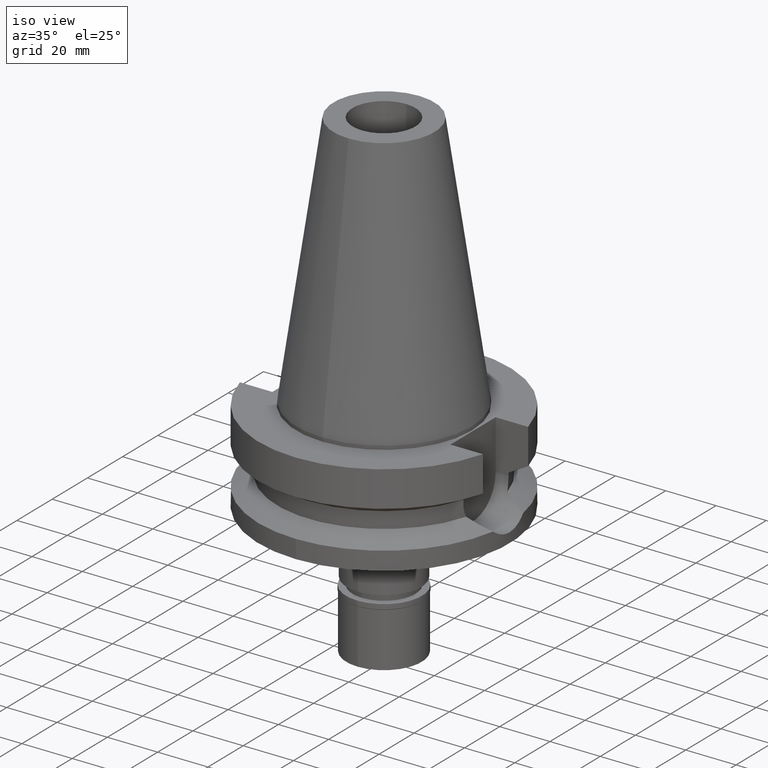
[diagram: clean part render]
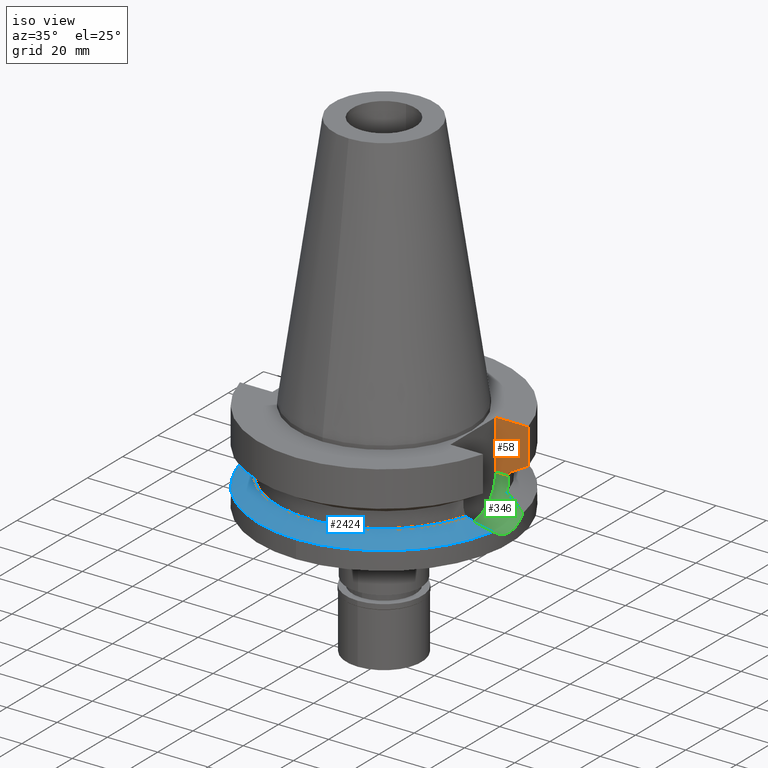
[diagram: same view with three faces highlighted in distinct colors, each labeled with its STEP entity id]
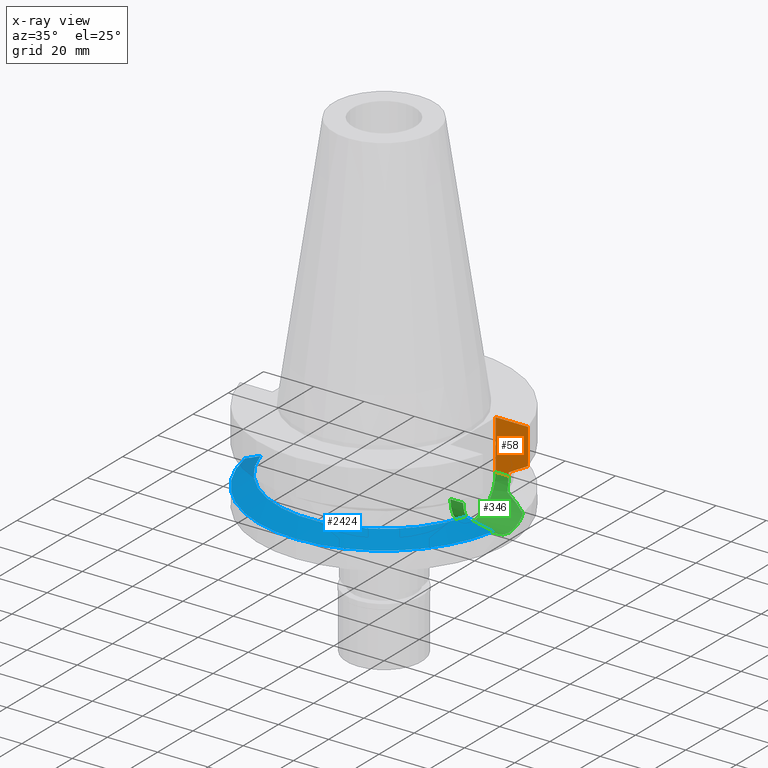
[diagram: x-ray of the same camera — body ghosted, the three highlighted faces saturated]
A machine part, iso view with three faces highlighted in distinct colors.
The next image is the same camera in x-ray (body ghosted, the three faces saturated) — at least one of them is partly hidden behind the body in this view.
Their STEP definitions:

[orange] entity #58 — the highlighted planar face has unit normal (0, 1, 0).
#17 = DIRECTION ( 'NONE',  ( 1.000000000000000000, 0.0000000000000000000, 0.0000000000000000000 ) ) ;
#23 = CARTESIAN_POINT ( 'NONE',  ( 40.51083300251000452, 12.84999647638000120, -19.99284629595999974 ) ) ;
#33 = VECTOR ( 'NONE', #539, 1000.000000000000000 ) ;
#35 = PLANE ( 'NONE',  #1196 ) ;
#58 = ADVANCED_FACE ( 'NONE', ( #1974 ), #35, .F. ) ;
#87 = EDGE_CURVE ( 'NONE', #2300, #2654, #1988, .T. ) ;
#125 = CARTESIAN_POINT ( 'NONE',  ( 35.39999999999999858, 12.84999999999999964, -1.500000000000000000 ) ) ;
#157 = CARTESIAN_POINT ( 'NONE',  ( 48.32056913467000214, 12.85000383272999969, -15.66265790252000301 ) ) ;
#195 = EDGE_CURVE ( 'NONE', #1798, #661, #783, .T. ) ;
#228 = EDGE_LOOP ( 'NONE', ( #863, #2216, #1369, #2311, #3137, #257 ) ) ;
#247 = DIRECTION ( 'NONE',  ( 0.0000000000000000000, 0.0000000000000000000, -1.000000000000000000 ) ) ;
#257 = ORIENTED_EDGE ( 'NONE', *, *, #87, .T. ) ;
#261 = CARTESIAN_POINT ( 'NONE',  ( 35.39999999999999858, 12.84999999999999964, -21.14999999999999858 ) ) ;
#374 = CARTESIAN_POINT ( 'NONE',  ( 40.51083300251000452, 12.84999647638000120, -19.99284629595999974 ) ) ;
#470 = VERTEX_POINT ( 'NONE', #1041 ) ;
#504 = CARTESIAN_POINT ( 'NONE',  ( 40.51083188481999997, 12.84999999999999964, -21.14999999999999858 ) ) ;
#539 = DIRECTION ( 'NONE',  ( 1.000000000000000000, -3.336643826789999529E-14, 0.0000000000000000000 ) ) ;
#661 = VERTEX_POINT ( 'NONE', #1169 ) ;
#702 = VECTOR ( 'NONE', #1903, 1000.000000000000000 ) ;
#783 = LINE ( 'NONE', #1474, #1143 ) ;
#863 = ORIENTED_EDGE ( 'NONE', *, *, #1799, .F. ) ;
#923 = CARTESIAN_POINT ( 'NONE',  ( 35.39999999999999858, 12.84999999999999964, -1.500000000000000000 ) ) ;
#943 = EDGE_CURVE ( 'NONE', #470, #2264, #2625, .T. ) ;
#1041 = CARTESIAN_POINT ( 'NONE',  ( 48.32056913467000214, 12.85000383272999969, -15.66265790252000301 ) ) ;
#1045 = DIRECTION ( 'NONE',  ( 9.658929590383971837E-07, -3.045070870682990904E-06, 0.9999999999948973040 ) ) ;
#1107 = CARTESIAN_POINT ( 'NONE',  ( 45.51179780372359573, 12.85000766083355650, -17.22986774231831220 ) ) ;
#1143 = VECTOR ( 'NONE', #247, 1000.000000000000000 ) ;
#1169 = CARTESIAN_POINT ( 'NONE',  ( 35.39999999999999858, 12.84999999999999964, -21.14999999999999858 ) ) ;
#1196 = AXIS2_PLACEMENT_3D ( 'NONE', #261, #2215, #17 ) ;
#1280 = CARTESIAN_POINT ( 'NONE',  ( 48.32057015392000210, 12.84999999999999964, -1.500000000000000000 ) ) ;
#1369 = ORIENTED_EDGE ( 'NONE', *, *, #1984, .F. ) ;
#1474 = CARTESIAN_POINT ( 'NONE',  ( 35.39999999999999858, 12.84999999999999964, -1.500000000000000000 ) ) ;
#1720 = VECTOR ( 'NONE', #2099, 1000.000000000000000 ) ;
#1798 = VERTEX_POINT ( 'NONE', #125 ) ;
#1799 = EDGE_CURVE ( 'NONE', #470, #2654, #2451, .T. ) ;
#1903 = DIRECTION ( 'NONE',  ( 1.000000000000000000, 0.0000000000000000000, 0.0000000000000000000 ) ) ;
#1974 = FACE_OUTER_BOUND ( 'NONE', #228, .T. ) ;
#1984 = EDGE_CURVE ( 'NONE', #1798, #2264, #2883, .T. ) ;
#1988 = LINE ( 'NONE', #504, #2970 ) ;
#2099 = DIRECTION ( 'NONE',  ( 7.196714009508719416E-08, -2.706218663693894436E-07, 0.9999999999999608091 ) ) ;
#2206 = CARTESIAN_POINT ( 'NONE',  ( 35.39999999999999858, 12.84999999999999964, -21.14999999999999858 ) ) ;
#2215 = DIRECTION ( 'NONE',  ( -0.0000000000000000000, 1.000000000000000000, 0.0000000000000000000 ) ) ;
#2216 = ORIENTED_EDGE ( 'NONE', *, *, #943, .T. ) ;
#2264 = VERTEX_POINT ( 'NONE', #1280 ) ;
#2300 = VERTEX_POINT ( 'NONE', #2452 ) ;
#2311 = ORIENTED_EDGE ( 'NONE', *, *, #195, .T. ) ;
#2343 = EDGE_CURVE ( 'NONE', #661, #2300, #2747, .T. ) ;
#2360 = CARTESIAN_POINT ( 'NONE',  ( 48.32056913467000214, 12.85000383272999969, -15.66265790252000301 ) ) ;
#2451 = B_SPLINE_CURVE_WITH_KNOTS ( 'NONE', 3,
 ( #2360, #1107, #2823, #374 ),
 .UNSPECIFIED., .F., .F.,
 ( 4, 4 ),
 ( 0.0000000000000000000, 1.000000000000000000 ),
 .UNSPECIFIED. ) ;
#2452 = CARTESIAN_POINT ( 'NONE',  ( 40.51083188481999997, 12.84999999999999964, -21.14999999999999858 ) ) ;
#2625 = LINE ( 'NONE', #157, #1720 ) ;
#2654 = VERTEX_POINT ( 'NONE', #23 ) ;
#2747 = LINE ( 'NONE', #2206, #33 ) ;
#2823 = CARTESIAN_POINT ( 'NONE',  ( 42.90862363287928360, 12.84999294559502836, -18.67324852983504968 ) ) ;
#2883 = LINE ( 'NONE', #923, #702 ) ;
#2970 = VECTOR ( 'NONE', #1045, 1000.000000000000000 ) ;
#3137 = ORIENTED_EDGE ( 'NONE', *, *, #2343, .T. ) ;

[blue] entity #2424 — the highlighted conical surface has half-angle 60 deg.
#84 = CARTESIAN_POINT ( 'NONE',  ( 0.0000000000000000000, 0.0000000000000000000, -26.40718074535000426 ) ) ;
#128 = CARTESIAN_POINT ( 'NONE',  ( -48.06470078914732369, -9.209032971910556142, -30.12395289545179011 ) ) ;
#189 = VERTEX_POINT ( 'NONE', #2956 ) ;
#198 = DIRECTION ( 'NONE',  ( 0.0000000000000000000, 0.0000000000000000000, -1.000000000000000000 ) ) ;
#262 = ORIENTED_EDGE ( 'NONE', *, *, #2661, .F. ) ;
#284 = CARTESIAN_POINT ( 'NONE',  ( -40.85052569294000335, -11.72538061688000077, -26.40718074535000426 ) ) ;
#303 = CARTESIAN_POINT ( 'NONE',  ( -46.17227160335852432, -10.05454520068514412, -29.15267120961923553 ) ) ;
#394 = CIRCLE ( 'NONE', #1819, 42.50000000000000000 ) ;
#431 = DIRECTION ( 'NONE',  ( 0.0000000000000000000, 0.0000000000000000000, -1.000000000000000000 ) ) ;
#523 = CARTESIAN_POINT ( 'NONE',  ( -43.95200883355096266, -10.89594475692153708, -28.01054105456284304 ) ) ;
#551 = CARTESIAN_POINT ( 'NONE',  ( 43.79693304722244562, -10.91843803171270721, -27.92991481741735527 ) ) ;
#613 = CARTESIAN_POINT ( 'NONE',  ( -47.05859043544599274, -9.676808570781791019, -29.60788274902913386 ) ) ;
#705 = B_SPLINE_CURVE_WITH_KNOTS ( 'NONE', 3,
 ( #2966, #797, #1766, #551, #2495, #2064, #1826, #2305, #2795, #1840 ),
 .UNSPECIFIED., .F., .F.,
 ( 4, 2, 2, 2, 4 ),
 ( 0.0000000000000000000, 0.2499999999999978906, 0.3749999999999973910, 0.4999999999999968914, 1.000000000000000000 ),
 .UNSPECIFIED. ) ;
#719 = B_SPLINE_CURVE_WITH_KNOTS ( 'NONE', 3,
 ( #1742, #2008, #128, #613, #1341, #303, #755, #1964, #2468, #1281, #2238, #2712, #1729, #2699, #523, #2250, #284 ),
 .UNSPECIFIED., .F., .F.,
 ( 4, 2, 2, 1, 1, 1, 1, 1, 2, 2, 4 ),
 ( 0.0000000000000000000, 0.2500000000000078826, 0.3750000000000118239, 0.4375000000000146549, 0.4687500000000157097, 0.4843750000000165423, 0.4921875000000178746, 0.4960937500000185962, 0.4980468750000195399, 0.5000000000000205391, 1.000000000000000000 ),
 .UNSPECIFIED. ) ;
#755 = CARTESIAN_POINT ( 'NONE',  ( -45.89829391930676650, -10.16558497959637819, -29.01185241229442369 ) ) ;
#784 = CARTESIAN_POINT ( 'NONE',  ( 40.85052569294000335, -11.72538061688000077, -26.40718074535000426 ) ) ;
#797 = CARTESIAN_POINT ( 'NONE',  ( 41.75396824093865433, -11.51557556459704301, -26.87512054284432494 ) ) ;
#1110 = AXIS2_PLACEMENT_3D ( 'NONE', #1710, #431, #2650 ) ;
#1180 = DIRECTION ( 'NONE',  ( 0.0000000000000000000, -1.000000000000000000, 0.0000000000000000000 ) ) ;
#1240 = DIRECTION ( 'NONE',  ( 0.0000000000000000000, 0.0000000000000000000, -1.000000000000000000 ) ) ;
#1281 = CARTESIAN_POINT ( 'NONE',  ( -45.32173445990380145, -10.38696557368014872, -28.71530564697427934 ) ) ;
#1293 = EDGE_LOOP ( 'NONE', ( #2187, #1632, #1960, #1998, #262 ) ) ;
#1325 = AXIS2_PLACEMENT_3D ( 'NONE', #2387, #198, #1180 ) ;
#1341 = CARTESIAN_POINT ( 'NONE',  ( -46.71124693321148413, -9.829930420050569495, -29.42958155129365139 ) ) ;
#1360 = EDGE_CURVE ( 'NONE', #1493, #1562, #394, .T. ) ;
#1490 = EDGE_CURVE ( 'NONE', #1562, #2351, #705, .T. ) ;
#1493 = VERTEX_POINT ( 'NONE', #2320 ) ;
#1562 = VERTEX_POINT ( 'NONE', #784 ) ;
#1623 = CONICAL_SURFACE ( 'NONE', #3038, 46.25000000000000000, 1.047197551196400456 ) ;
#1632 = ORIENTED_EDGE ( 'NONE', *, *, #2490, .F. ) ;
#1710 = CARTESIAN_POINT ( 'NONE',  ( 0.0000000000000000000, 0.0000000000000000000, -30.73730776426999967 ) ) ;
#1729 = CARTESIAN_POINT ( 'NONE',  ( -45.25003329997131374, -10.41371616422548740, -28.67841484540468144 ) ) ;
#1742 = CARTESIAN_POINT ( 'NONE',  ( -49.26250064874000145, -8.556052234130000045, -30.73730776426999967 ) ) ;
#1766 = CARTESIAN_POINT ( 'NONE',  ( 42.60350039800909627, -11.28501275749034072, -27.31434286833754044 ) ) ;
#1819 = AXIS2_PLACEMENT_3D ( 'NONE', #84, #2017, #2477 ) ;
#1826 = CARTESIAN_POINT ( 'NONE',  ( 45.28216753375731685, -10.40443642647353961, -28.69444357642723631 ) ) ;
#1840 = CARTESIAN_POINT ( 'NONE',  ( 49.26250064874000145, -8.556052234130000045, -30.73730776426999967 ) ) ;
#1881 = CIRCLE ( 'NONE', #1325, 50.00000000000000000 ) ;
#1960 = ORIENTED_EDGE ( 'NONE', *, *, #1490, .F. ) ;
#1964 = CARTESIAN_POINT ( 'NONE',  ( -45.57079575444381447, -10.29271808923187770, -28.84342947909450672 ) ) ;
#1998 = ORIENTED_EDGE ( 'NONE', *, *, #1360, .F. ) ;
#2008 = CARTESIAN_POINT ( 'NONE',  ( -48.68754748761186590, -8.885998275624471532, -30.44285225758557445 ) ) ;
#2017 = DIRECTION ( 'NONE',  ( 0.0000000000000000000, 0.0000000000000000000, 1.000000000000000000 ) ) ;
#2031 = CIRCLE ( 'NONE', #1110, 50.00000000000000000 ) ;
#2064 = CARTESIAN_POINT ( 'NONE',  ( 44.92297770777549459, -10.53612987693290926, -28.50971311233822192 ) ) ;
#2187 = ORIENTED_EDGE ( 'NONE', *, *, #2548, .F. ) ;
#2238 = CARTESIAN_POINT ( 'NONE',  ( -45.27993777157273314, -10.40257967896112135, -28.69380122990297721 ) ) ;
#2250 = CARTESIAN_POINT ( 'NONE',  ( -42.48949765321938798, -11.34476471764678607, -27.25608941018916909 ) ) ;
#2305 = CARTESIAN_POINT ( 'NONE',  ( 46.99261131393738111, -9.743370682494790103, -29.57401611051870560 ) ) ;
#2320 = CARTESIAN_POINT ( 'NONE',  ( -40.85052569294000335, -11.72538061688000077, -26.40718074535000426 ) ) ;
#2351 = VERTEX_POINT ( 'NONE', #2974 ) ;
#2366 = DIRECTION ( 'NONE',  ( 0.0000000000000000000, -1.000000000000000000, 0.0000000000000000000 ) ) ;
#2387 = CARTESIAN_POINT ( 'NONE',  ( 0.0000000000000000000, 0.0000000000000000000, -30.73730776426999967 ) ) ;
#2424 = ADVANCED_FACE ( 'NONE', ( #3062 ), #1623, .T. ) ;
#2468 = CARTESIAN_POINT ( 'NONE',  ( -45.40508228864501916, -10.35565650936537807, -28.75818555560833545 ) ) ;
#2477 = DIRECTION ( 'NONE',  ( 0.0000000000000000000, -1.000000000000000000, 0.0000000000000000000 ) ) ;
#2490 = EDGE_CURVE ( 'NONE', #2351, #189, #2031, .T. ) ;
#2495 = CARTESIAN_POINT ( 'NONE',  ( 44.18126633256147784, -10.79278064368078383, -28.12791486455022749 ) ) ;
#2548 = EDGE_CURVE ( 'NONE', #189, #2768, #1881, .T. ) ;
#2573 = CARTESIAN_POINT ( 'NONE',  ( -49.26250064874000145, -8.556052234130000045, -30.73730776426999967 ) ) ;
#2650 = DIRECTION ( 'NONE',  ( 0.9852500129747439050, -0.1711210446826074982, 0.0000000000000000000 ) ) ;
#2661 = EDGE_CURVE ( 'NONE', #2768, #1493, #719, .T. ) ;
#2699 = CARTESIAN_POINT ( 'NONE',  ( -45.24308286831119119, -10.41630036337064880, -28.67483866301918738 ) ) ;
#2712 = CARTESIAN_POINT ( 'NONE',  ( -45.26199859643931944, -10.40926273355748677, -28.68457124044441997 ) ) ;
#2768 = VERTEX_POINT ( 'NONE', #2573 ) ;
#2795 = CARTESIAN_POINT ( 'NONE',  ( 48.20535943358625985, -9.162709580887716143, -30.19590531066164729 ) ) ;
#2832 = CARTESIAN_POINT ( 'NONE',  ( 0.0000000000000000000, 0.0000000000000000000, -28.57224425480999841 ) ) ;
#2956 = CARTESIAN_POINT ( 'NONE',  ( 0.0000000000000000000, -50.00000000000000000, -30.73730776426999967 ) ) ;
#2966 = CARTESIAN_POINT ( 'NONE',  ( 40.85052569294000335, -11.72538061688000077, -26.40718074535000426 ) ) ;
#2974 = CARTESIAN_POINT ( 'NONE',  ( 49.26250064874000145, -8.556052234130000045, -30.73730776426999967 ) ) ;
#3038 = AXIS2_PLACEMENT_3D ( 'NONE', #2832, #1240, #2366 ) ;
#3062 = FACE_OUTER_BOUND ( 'NONE', #1293, .T. ) ;

[green] entity #346 — the highlighted cylindrical surface (partial cylindrical patch) has radius 12.85 mm, axis along (1, 0, 0).
#4 = ORIENTED_EDGE ( 'NONE', *, *, #1601, .T. ) ;
#22 = CARTESIAN_POINT ( 'NONE',  ( 49.73975255189971278, 5.127509536859588657, -32.94811602937416239 ) ) ;
#33 = VECTOR ( 'NONE', #539, 1000.000000000000000 ) ;
#47 = CARTESIAN_POINT ( 'NONE',  ( 49.98261383967735583, -1.500558363489409963, -33.93574400298680871 ) ) ;
#65 = CARTESIAN_POINT ( 'NONE',  ( 45.31123041090138059, 10.39129058171987730, -28.70934102372478947 ) ) ;
#81 = CARTESIAN_POINT ( 'NONE',  ( 49.71773619479519368, -5.301485227040060977, -32.85669905118468392 ) ) ;
#82 = AXIS2_PLACEMENT_3D ( 'NONE', #2906, #2184, #2708 ) ;
#101 = CARTESIAN_POINT ( 'NONE',  ( 45.91788233851954715, 10.15819505262003553, -29.02137211855098542 ) ) ;
#108 = CARTESIAN_POINT ( 'NONE',  ( 49.78852623003829336, -4.593834391891897795, -33.15080591698723111 ) ) ;
#113 = CARTESIAN_POINT ( 'NONE',  ( 40.51083188481998576, 12.84999999999999609, -22.03308001787898363 ) ) ;
#138 = CARTESIAN_POINT ( 'NONE',  ( 40.51083188481999997, -12.84999999999999964, -21.14999999999999858 ) ) ;
#147 = CARTESIAN_POINT ( 'NONE',  ( 40.51083188481999997, -12.85000000000000320, -21.59154171177989667 ) ) ;
#156 = CARTESIAN_POINT ( 'NONE',  ( 40.85052569294000335, -11.72538061688000077, -26.40718074535000426 ) ) ;
#263 = CARTESIAN_POINT ( 'NONE',  ( 49.79173955587080513, 4.558792742357672623, -33.16415544152760475 ) ) ;
#266 = CARTESIAN_POINT ( 'NONE',  ( 40.63719938804484144, 12.44499676302420532, -24.35261212843622047 ) ) ;
#292 = CARTESIAN_POINT ( 'NONE',  ( 49.78974543591902346, -4.580568652478198111, -33.15586994644122854 ) ) ;
#296 = CARTESIAN_POINT ( 'NONE',  ( 42.50583130523752118, 11.34097157914026965, -27.26454945652885087 ) ) ;
#311 = CARTESIAN_POINT ( 'NONE',  ( 49.76779264235984357, -4.813552442414976262, -33.06481752115855244 ) ) ;
#314 = CARTESIAN_POINT ( 'NONE',  ( 43.97693828744524325, 10.88825773756050808, -28.02287518022296453 ) ) ;
#345 = CARTESIAN_POINT ( 'NONE',  ( 49.79081990968762028, -4.568854175488819891, -33.16033354867019511 ) ) ;
#346 = ADVANCED_FACE ( 'NONE', ( #3002 ), #1308, .F. ) ;
#368 = CARTESIAN_POINT ( 'NONE',  ( 49.66989089100455601, 5.761879091785703899, -32.66244013549982839 ) ) ;
#410 = CARTESIAN_POINT ( 'NONE',  ( 40.51818719763606680, -12.82722225432846486, -22.03686830839668431 ) ) ;
#472 = EDGE_CURVE ( 'NONE', #2909, #501, #2340, .T. ) ;
#488 = B_SPLINE_CURVE_WITH_KNOTS ( 'NONE', 3,
 ( #1830, #2486, #2723, #1979, #789, #266, #1249, #2220, #1774, #1036, #1092, #2324, #113, #2550 ),
 .UNSPECIFIED., .F., .F.,
 ( 4, 2, 2, 1, 1, 2, 2, 4 ),
 ( 0.0000000000000000000, 0.2500000000000073830, 0.3750000000000118794, 0.4375000000000131561, 0.4687500000000128231, 0.4843750000000127121, 0.5000000000000125455, 1.000000000000000000 ),
 .UNSPECIFIED. ) ;
#501 = VERTEX_POINT ( 'NONE', #2817 ) ;
#506 = CARTESIAN_POINT ( 'NONE',  ( 49.82081573775739969, 4.229771872516516318, -33.28463879269514081 ) ) ;
#513 = ORIENTED_EDGE ( 'NONE', *, *, #2810, .T. ) ;
#535 = CARTESIAN_POINT ( 'NONE',  ( 45.34670889343192357, 10.37800447507444090, -28.72759324151313720 ) ) ;
#537 = CARTESIAN_POINT ( 'NONE',  ( 49.49361225530456210, 7.116990880673130349, -31.87771967131133266 ) ) ;
#539 = DIRECTION ( 'NONE',  ( 1.000000000000000000, -3.336643826789999529E-14, 0.0000000000000000000 ) ) ;
#549 = CARTESIAN_POINT ( 'NONE',  ( 49.91306816534679314, -3.031090855953892493, -33.66157117771800955 ) ) ;
#551 = CARTESIAN_POINT ( 'NONE',  ( 43.79693304722244562, -10.91843803171270721, -27.92991481741735527 ) ) ;
#553 = CARTESIAN_POINT ( 'NONE',  ( 48.06851946822539645, 9.207153404535143082, -30.12574645233389958 ) ) ;
#564 = CARTESIAN_POINT ( 'NONE',  ( 49.26250064874000145, -8.556052234130000045, -30.73730776426999967 ) ) ;
#586 = AXIS2_PLACEMENT_3D ( 'NONE', #2766, #1581, #857 ) ;
#661 = VERTEX_POINT ( 'NONE', #1169 ) ;
#662 = CARTESIAN_POINT ( 'NONE',  ( 40.59544671389546977, -12.58032818125550101, -23.76890350619959591 ) ) ;
#691 = CARTESIAN_POINT ( 'NONE',  ( 40.59736864107564003, -12.57412283048047641, -23.79851909555267397 ) ) ;
#705 = B_SPLINE_CURVE_WITH_KNOTS ( 'NONE', 3,
 ( #2966, #797, #1766, #551, #2495, #2064, #1826, #2305, #2795, #1840 ),
 .UNSPECIFIED., .F., .F.,
 ( 4, 2, 2, 2, 4 ),
 ( 0.0000000000000000000, 0.2499999999999978906, 0.3749999999999973910, 0.4999999999999968914, 1.000000000000000000 ),
 .UNSPECIFIED. ) ;
#720 = CARTESIAN_POINT ( 'NONE',  ( 49.98261161639165806, 1.500598209080370893, -33.93574248253926129 ) ) ;
#736 = CARTESIAN_POINT ( 'NONE',  ( 49.84839303697045665, 3.895404147803682715, -33.39823680735965183 ) ) ;
#784 = CARTESIAN_POINT ( 'NONE',  ( 40.85052569294000335, -11.72538061688000077, -26.40718074535000426 ) ) ;
#789 = CARTESIAN_POINT ( 'NONE',  ( 40.66327695313441382, 12.35977177935619764, -24.67238797831660690 ) ) ;
#797 = CARTESIAN_POINT ( 'NONE',  ( 41.75396824093865433, -11.51557556459704301, -26.87512054284432494 ) ) ;
#813 = ORIENTED_EDGE ( 'NONE', *, *, #2623, .T. ) ;
#817 = B_SPLINE_CURVE_WITH_KNOTS ( 'NONE', 3,
 ( #1933, #1193, #720, #3146, #972, #1950, #736, #506, #1476, #1703, #2679, #2450, #1458, #263, #22, #368, #537, #1093, #2005 ),
 .UNSPECIFIED., .F., .F.,
 ( 4, 2, 2, 1, 1, 1, 1, 1, 2, 2, 2, 4 ),
 ( 0.0000000000000000000, 0.2500000000000630607, 0.3750000000000945355, 0.4375000000001105782, 0.4687500000001189049, 0.4843750000001234013, 0.4921875000001252887, 0.4960937500001257883, 0.4980468750001260658, 0.5000000000001263434, 0.7500000000000631717, 1.000000000000000000 ),
 .UNSPECIFIED. ) ;
#819 = CARTESIAN_POINT ( 'NONE',  ( 45.27390061106402896, 10.40523376717388082, -28.69013600846888679 ) ) ;
#829 = CARTESIAN_POINT ( 'NONE',  ( 49.86090890959889066, -3.802093052270004048, -33.45158313280379758 ) ) ;
#857 = DIRECTION ( 'NONE',  ( 0.0000000000000000000, 0.0000000000000000000, -1.000000000000000000 ) ) ;
#858 = CARTESIAN_POINT ( 'NONE',  ( 49.26250064874000145, 8.556052234130000045, -30.73730776426999967 ) ) ;
#868 = EDGE_CURVE ( 'NONE', #1296, #1440, #817, .T. ) ;
#884 = CARTESIAN_POINT ( 'NONE',  ( 40.56599673094049763, -12.67509433840594291, -23.26596311450725096 ) ) ;
#905 = ORIENTED_EDGE ( 'NONE', *, *, #2343, .F. ) ;
#972 = CARTESIAN_POINT ( 'NONE',  ( 49.90870988845126988, 3.032621470742910219, -33.64335829089890950 ) ) ;
#1036 = CARTESIAN_POINT ( 'NONE',  ( 40.60257095199524713, 12.55731571366592725, -23.87709474180364921 ) ) ;
#1058 = EDGE_LOOP ( 'NONE', ( #4, #813, #905, #2927, #2920, #513, #2101, #2072, #2054 ) ) ;
#1060 = CARTESIAN_POINT ( 'NONE',  ( 49.79055600884188237, -4.571733192414884073, -33.15923719343983578 ) ) ;
#1066 = CARTESIAN_POINT ( 'NONE',  ( 45.59339658389674810, 10.28443529616816043, -28.85449113462793136 ) ) ;
#1092 = CARTESIAN_POINT ( 'NONE',  ( 40.60092750940731321, 12.56262654778621801, -23.85254111936651711 ) ) ;
#1093 = CARTESIAN_POINT ( 'NONE',  ( 49.38719528049971075, 7.838107881977241398, -31.37802667402631585 ) ) ;
#1099 = EDGE_CURVE ( 'NONE', #661, #501, #1616, .T. ) ;
#1123 = CARTESIAN_POINT ( 'NONE',  ( 40.57496101843508995, -12.64633755876963583, -23.43369807925312287 ) ) ;
#1155 = CARTESIAN_POINT ( 'NONE',  ( 40.73816957791172655, -12.11682261042261111, -25.53412604435476752 ) ) ;
#1169 = CARTESIAN_POINT ( 'NONE',  ( 35.39999999999999858, 12.84999999999999964, -21.14999999999999858 ) ) ;
#1173 = B_SPLINE_CURVE_WITH_KNOTS ( 'NONE', 3,
 ( #564, #2304, #2734, #2524, #2509, #81, #2475, #1534, #311, #1305, #1781, #108, #292, #1060, #345, #829, #549, #47, #2763, #2542 ),
 .UNSPECIFIED., .F., .F.,
 ( 4, 2, 2, 2, 1, 1, 1, 1, 2, 2, 2, 4 ),
 ( 0.0000000000000000000, 0.2500000000000011102, 0.3750000000000011102, 0.4375000000000012212, 0.4687500000000011102, 0.4843750000000004996, 0.4921874999999994449, 0.4960937499999995559, 0.4980468749999995559, 0.4999999999999995559, 0.7499999999999997780, 1.000000000000000000 ),
 .UNSPECIFIED. ) ;
#1193 = CARTESIAN_POINT ( 'NONE',  ( 50.00000025826000183, 0.7410501625552421423, -34.00000000000000711 ) ) ;
#1249 = CARTESIAN_POINT ( 'NONE',  ( 40.62482961095367529, 12.48525133054555880, -24.19329755002783600 ) ) ;
#1296 = VERTEX_POINT ( 'NONE', #1535 ) ;
#1305 = CARTESIAN_POINT ( 'NONE',  ( 49.77982781054785733, -4.687306582335122762, -33.11470790354513127 ) ) ;
#1308 = CYLINDRICAL_SURFACE ( 'NONE', #586, 12.85000000000000320 ) ;
#1380 = CARTESIAN_POINT ( 'NONE',  ( 40.54944727710434904, -12.72806419700652292, -22.93049076230773409 ) ) ;
#1440 = VERTEX_POINT ( 'NONE', #3001 ) ;
#1458 = CARTESIAN_POINT ( 'NONE',  ( 49.79242228463829889, 4.551311719052752558, -33.16699222119805768 ) ) ;
#1476 = CARTESIAN_POINT ( 'NONE',  ( 49.80631388213675592, 4.396616480774404145, -33.22463328521344295 ) ) ;
#1490 = EDGE_CURVE ( 'NONE', #1562, #2351, #705, .T. ) ;
#1500 = VECTOR ( 'NONE', #2090, 1000.000000000000000 ) ;
#1534 = CARTESIAN_POINT ( 'NONE',  ( 49.75683425659761383, -4.924090891232652645, -33.01938925290900073 ) ) ;
#1535 = CARTESIAN_POINT ( 'NONE',  ( 50.00000025826000183, 3.971017416291999918E-14, -34.00000117529000931 ) ) ;
#1553 = CARTESIAN_POINT ( 'NONE',  ( 48.68866064001787208, 8.885359475363900472, -30.44342234551132620 ) ) ;
#1562 = VERTEX_POINT ( 'NONE', #784 ) ;
#1581 = DIRECTION ( 'NONE',  ( 1.000000000000000000, 0.0000000000000000000, 0.0000000000000000000 ) ) ;
#1601 = EDGE_CURVE ( 'NONE', #1440, #2711, #2040, .T. ) ;
#1616 = CIRCLE ( 'NONE', #82, 12.84999999999999964 ) ;
#1703 = CARTESIAN_POINT ( 'NONE',  ( 49.79888465282288479, 4.479942984885538770, -33.19382580995223009 ) ) ;
#1766 = CARTESIAN_POINT ( 'NONE',  ( 42.60350039800909627, -11.28501275749034072, -27.31434286833754044 ) ) ;
#1774 = CARTESIAN_POINT ( 'NONE',  ( 40.60613670648093887, 12.54578755583798255, -23.92964714797313164 ) ) ;
#1781 = CARTESIAN_POINT ( 'NONE',  ( 49.78565799084152843, -4.624875436568451903, -33.13889740139915574 ) ) ;
#1797 = CARTESIAN_POINT ( 'NONE',  ( 47.06885596593117782, 9.672503665933867012, -29.61276978183282083 ) ) ;
#1826 = CARTESIAN_POINT ( 'NONE',  ( 45.28216753375731685, -10.40443642647353961, -28.69444357642723631 ) ) ;
#1828 = CARTESIAN_POINT ( 'NONE',  ( 46.72405950773218564, 9.824723994150495798, -29.43570902150023016 ) ) ;
#1830 = CARTESIAN_POINT ( 'NONE',  ( 40.85052569294000335, 11.72538061688000077, -26.40718074535000426 ) ) ;
#1840 = CARTESIAN_POINT ( 'NONE',  ( 49.26250064874000145, -8.556052234130000045, -30.73730776426999967 ) ) ;
#1847 = CARTESIAN_POINT ( 'NONE',  ( 40.51083188481999997, -12.84999999999999964, -21.14999999999999858 ) ) ;
#1933 = CARTESIAN_POINT ( 'NONE',  ( 50.00000025826000183, 3.971017416291999918E-14, -34.00000117529000931 ) ) ;
#1950 = CARTESIAN_POINT ( 'NONE',  ( 49.86958544424749107, 3.607938959039414417, -33.48470105273092656 ) ) ;
#1979 = CARTESIAN_POINT ( 'NONE',  ( 40.68244601107046066, 12.29666625013076242, -24.88710380512492293 ) ) ;
#2005 = CARTESIAN_POINT ( 'NONE',  ( 49.26250064874000145, 8.556052234130000045, -30.73730776426999967 ) ) ;
#2038 = CARTESIAN_POINT ( 'NONE',  ( 45.28755548122458663, 10.40014020497599745, -28.69716108106556263 ) ) ;
#2040 = B_SPLINE_CURVE_WITH_KNOTS ( 'NONE', 3,
 ( #858, #1553, #553, #1797, #1828, #2307, #101, #1066, #2479, #535, #65, #2038, #819, #314, #296, #2066 ),
 .UNSPECIFIED., .F., .F.,
 ( 4, 2, 2, 1, 1, 1, 1, 2, 2, 4 ),
 ( 0.0000000000000000000, 0.2499999999999621414, 0.3749999999999424349, 0.4374999999999324429, 0.4687499999999276135, 0.4843749999999260036, 0.4921874999999251155, 0.4960937499999246714, 0.4999999999999241718, 1.000000000000000000 ),
 .UNSPECIFIED. ) ;
#2054 = ORIENTED_EDGE ( 'NONE', *, *, #868, .T. ) ;
#2064 = CARTESIAN_POINT ( 'NONE',  ( 44.92297770777549459, -10.53612987693290926, -28.50971311233822192 ) ) ;
#2066 = CARTESIAN_POINT ( 'NONE',  ( 40.85052569294000335, 11.72538061688000077, -26.40718074535000426 ) ) ;
#2072 = ORIENTED_EDGE ( 'NONE', *, *, #3102, .T. ) ;
#2090 = DIRECTION ( 'NONE',  ( -1.000000000000000000, -3.510427359434999885E-14, 0.0000000000000000000 ) ) ;
#2098 = CARTESIAN_POINT ( 'NONE',  ( 40.58662608485430923, -12.60878154790875705, -23.62927549511974590 ) ) ;
#2101 = ORIENTED_EDGE ( 'NONE', *, *, #1490, .T. ) ;
#2184 = DIRECTION ( 'NONE',  ( -1.000000000000000000, 0.0000000000000000000, 0.0000000000000000000 ) ) ;
#2206 = CARTESIAN_POINT ( 'NONE',  ( 35.39999999999999858, 12.84999999999999964, -21.14999999999999858 ) ) ;
#2220 = CARTESIAN_POINT ( 'NONE',  ( 40.61156896389117321, 12.52821669072132238, -24.00856318991754890 ) ) ;
#2300 = VERTEX_POINT ( 'NONE', #2452 ) ;
#2304 = CARTESIAN_POINT ( 'NONE',  ( 49.38719707821498872, -7.838097531446611477, -31.37803591120560398 ) ) ;
#2305 = CARTESIAN_POINT ( 'NONE',  ( 46.99261131393738111, -9.743370682494790103, -29.57401611051870560 ) ) ;
#2307 = CARTESIAN_POINT ( 'NONE',  ( 46.18950188428230064, 10.04789782567043588, -29.16100294422858141 ) ) ;
#2324 = CARTESIAN_POINT ( 'NONE',  ( 40.54025086427707691, 12.75862911299659785, -22.93149008164821723 ) ) ;
#2340 = LINE ( 'NONE', #138, #1500 ) ;
#2343 = EDGE_CURVE ( 'NONE', #661, #2300, #2747, .T. ) ;
#2348 = CARTESIAN_POINT ( 'NONE',  ( 40.85052569294000335, 11.72538061688000077, -26.40718074535000426 ) ) ;
#2351 = VERTEX_POINT ( 'NONE', #2974 ) ;
#2450 = CARTESIAN_POINT ( 'NONE',  ( 49.79350482948116507, 4.539420145955950225, -33.17148930652149375 ) ) ;
#2452 = CARTESIAN_POINT ( 'NONE',  ( 40.51083188481999997, 12.84999999999999964, -21.14999999999999858 ) ) ;
#2475 = CARTESIAN_POINT ( 'NONE',  ( 49.73406078198591018, -5.148144078000012058, -32.92477821111388181 ) ) ;
#2479 = CARTESIAN_POINT ( 'NONE',  ( 45.42925463544378317, 10.34692222316132160, -28.77005784097520191 ) ) ;
#2486 = CARTESIAN_POINT ( 'NONE',  ( 40.79434743163782429, 11.92110232364133893, -25.97065181132315104 ) ) ;
#2495 = CARTESIAN_POINT ( 'NONE',  ( 44.18126633256147784, -10.79278064368078383, -28.12791486455022749 ) ) ;
#2509 = CARTESIAN_POINT ( 'NONE',  ( 49.66533562087423803, -5.772269753283526761, -32.63579971292630688 ) ) ;
#2524 = CARTESIAN_POINT ( 'NONE',  ( 49.62583282179525668, -6.100547697400591218, -32.46631986318712393 ) ) ;
#2542 = CARTESIAN_POINT ( 'NONE',  ( 50.00000025826000183, 3.971017416291999918E-14, -34.00000117529000931 ) ) ;
#2550 = CARTESIAN_POINT ( 'NONE',  ( 40.51083188481999997, 12.84999999999999964, -21.14999999999999858 ) ) ;
#2608 = CARTESIAN_POINT ( 'NONE',  ( 40.54025313608426728, -12.75731810732551530, -22.70684014853772226 ) ) ;
#2623 = EDGE_CURVE ( 'NONE', #2711, #2300, #488, .T. ) ;
#2679 = CARTESIAN_POINT ( 'NONE',  ( 49.79512546279006813, 4.521580902140023284, -33.17822051819047857 ) ) ;
#2708 = DIRECTION ( 'NONE',  ( 0.0000000000000000000, 1.000000000000000000, 0.0000000000000000000 ) ) ;
#2711 = VERTEX_POINT ( 'NONE', #2348 ) ;
#2723 = CARTESIAN_POINT ( 'NONE',  ( 40.74530522850765379, 12.08734613716549688, -25.53455770059955299 ) ) ;
#2729 = B_SPLINE_CURVE_WITH_KNOTS ( 'NONE', 3,
 ( #1847, #147, #410, #2608, #1380, #884, #1123, #2098, #3059, #662, #691, #2875, #1155, #156 ),
 .UNSPECIFIED., .F., .F.,
 ( 4, 2, 2, 1, 1, 2, 2, 4 ),
 ( 0.0000000000000000000, 0.2500000000000074385, 0.3750000000000121014, 0.4375000000000145439, 0.4687500000000147660, 0.4843750000000140998, 0.5000000000000133227, 1.000000000000000000 ),
 .UNSPECIFIED. ) ;
#2734 = CARTESIAN_POINT ( 'NONE',  ( 49.49361717516318038, -7.116953428386298519, -31.87774830591554576 ) ) ;
#2747 = LINE ( 'NONE', #2206, #33 ) ;
#2763 = CARTESIAN_POINT ( 'NONE',  ( 50.00000025825999472, -0.7410411365360317637, -33.99999999999999289 ) ) ;
#2766 = CARTESIAN_POINT ( 'NONE',  ( 35.39999999999999858, 0.0000000000000000000, -21.14999999999999858 ) ) ;
#2795 = CARTESIAN_POINT ( 'NONE',  ( 48.20535943358625985, -9.162709580887716143, -30.19590531066164729 ) ) ;
#2810 = EDGE_CURVE ( 'NONE', #2909, #1562, #2729, .T. ) ;
#2817 = CARTESIAN_POINT ( 'NONE',  ( 35.39999999999999858, -12.84999999999999964, -21.14999999999999858 ) ) ;
#2875 = CARTESIAN_POINT ( 'NONE',  ( 40.65435955980266414, -12.39001970627047911, -24.66361747036332730 ) ) ;
#2906 = CARTESIAN_POINT ( 'NONE',  ( 35.39999999999999858, 0.0000000000000000000, -21.14999999999999858 ) ) ;
#2909 = VERTEX_POINT ( 'NONE', #2922 ) ;
#2920 = ORIENTED_EDGE ( 'NONE', *, *, #472, .F. ) ;
#2922 = CARTESIAN_POINT ( 'NONE',  ( 40.51083188481999997, -12.84999999999999964, -21.14999999999999858 ) ) ;
#2927 = ORIENTED_EDGE ( 'NONE', *, *, #1099, .T. ) ;
#2966 = CARTESIAN_POINT ( 'NONE',  ( 40.85052569294000335, -11.72538061688000077, -26.40718074535000426 ) ) ;
#2974 = CARTESIAN_POINT ( 'NONE',  ( 49.26250064874000145, -8.556052234130000045, -30.73730776426999967 ) ) ;
#3001 = CARTESIAN_POINT ( 'NONE',  ( 49.26250064874000145, 8.556052234130000045, -30.73730776426999967 ) ) ;
#3002 = FACE_OUTER_BOUND ( 'NONE', #1058, .T. ) ;
#3059 = CARTESIAN_POINT ( 'NONE',  ( 40.59188398425018818, -12.59182459259314690, -23.71305796895863338 ) ) ;
#3102 = EDGE_CURVE ( 'NONE', #2351, #1296, #1173, .T. ) ;
#3146 = CARTESIAN_POINT ( 'NONE',  ( 49.93044569078667649, 2.648572746972359671, -33.73009097175856397 ) ) ;